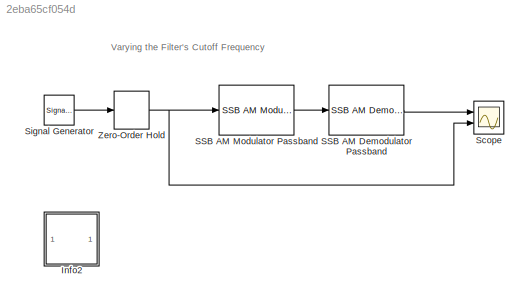
MODEL slx_2eba65cf054d
KIND model
CONFIG AbsTol = auto
CONFIG FixedStep = auto
CONFIG MaxStep = auto
CONFIG MinStep = auto
CONFIG RelTol = 1e-3
CONFIG SampleTimeConstraint = Unconstrained
CONFIG Solver = ode45
CONFIG SolverMode = Auto
CONFIG SolverName = ode45
CONFIG StartTime = 0.0
CONFIG StopTime = 10.0
BLOCK [SubSystem] Info2
  AncestorBlock = commblksprivate/Info
  OpenFcn = helpview([docroot '/toolbox/comm/comm.map'], 'doc_filtercutoffs')
  Ports = []
  RequestExecContextInheritance = off
  Variant = off
BLOCK [Reference] SSB AM Demodulator Passband  REF=commanapbnd3/SSB AM
Demodulator
Passband
  Ports = [1, 1]
  SourceBlock = commanapbnd3/SSB AM\nDemodulator\nPassband
  SourceType = SSB AM Demodulator Passband
BLOCK [Reference] SSB AM Modulator Passband  REF=commanapbnd3/SSB AM
Modulator
Passband
  Ports = [1, 1]
  SourceBlock = commanapbnd3/SSB AM\nModulator\nPassband
  SourceType = SSB AM Modulator Passband
BLOCK [Scope] Scope
  NumInputPorts = 2
  Ports = [2]
  ScopeSpecificationString = Simulink.scopes.TimeScopeBlockCfg('CurrentConfiguration', extmgr.ConfigurationSet(extmgr.Configuration('Core','General UI',true),extmgr.Configuration('Core','Source UI',true),extmgr.Configuration('Sources','WiredSimulink',true,'DataLoggingVariableName','ScopeData1','DataLoggingSaveFormat','StructureWithTime','DataLoggingLimitDataPoints',true,'DataLoggingDecimation','1','DataLoggingDecimateData',tr...<+2371ch>
BLOCK [SignalGenerator] Signal Generator
  Amplitude = 4
  Frequency = .3
  Ports = [0, 1]
  WaveForm = sawtooth
BLOCK [ZeroOrderHold] Zero-Order Hold
  SampleTime = .01
ANNOTATION (root): Varying the Filter's Cutoff Frequency
LINE SSB AM Demodulator Passband:1 -> Scope:1
LINE SSB AM Modulator Passband:1 -> SSB AM Demodulator Passband:1
LINE Signal Generator:1 -> Zero-Order Hold:1
NET Zero-Order Hold:1 -> SSB AM Modulator Passband:1, Scope:2
note: NET lines group one-source signal fan-out (src -> all destinations, sorted); 1:1 wires keep LINE
